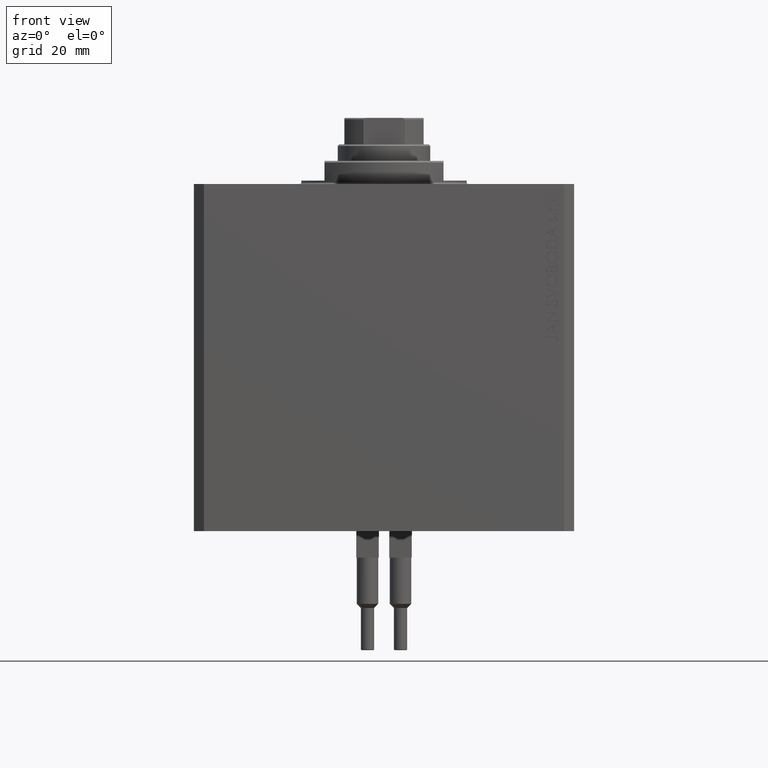
[diagram: clean part render]
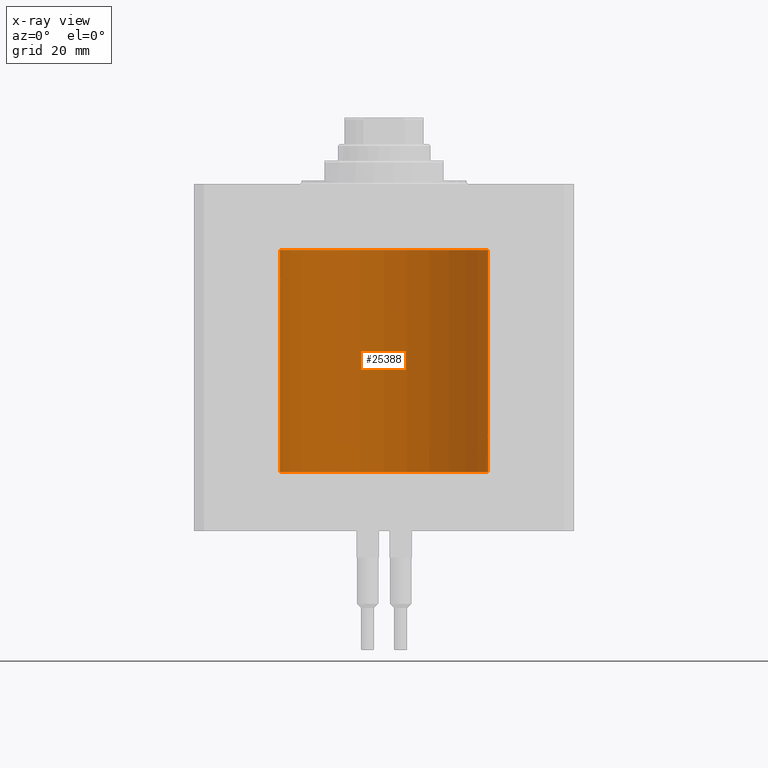
[diagram: x-ray — body ghosted, one internal face saturated and labeled with its STEP entity id]
A machine part, front view, then the same camera in x-ray: the body is ghosted and one INTERNAL B-rep face — a face not visible from any outside direction — is saturated and labeled: STEP entity #25388.
In plain terms, the highlighted cylindrical surface (partial cylindrical patch) has radius 31.5 mm, axis along (0, 0, 1).
Its self-contained STEP definition (entity closure, byte-faithful):
#2 = CARTESIAN_POINT ( 'NONE',  ( -31.46402885784291215, 1.507852291435628045, -30.32053570646255736 ) ) ;
#245 = CARTESIAN_POINT ( 'NONE',  ( -31.43644976744935349, 1.999906504661145057, -28.73831721771797731 ) ) ;
#478 = CARTESIAN_POINT ( 'NONE',  ( -31.45162599326494757, 1.747914105633341375, -27.99368423768024527 ) ) ;
#716 = CARTESIAN_POINT ( 'NONE',  ( -31.50000000000000711, 0.1321804137546035152, -27.00000000000000711 ) ) ;
#1134 = DIRECTION ( 'NONE',  ( -0.000000000000000000, -0.000000000000000000, 1.000000000000000000 ) ) ;
#2363 = ORIENTED_EDGE ( 'NONE', *, *, #32905, .T. ) ;
#2715 = DIRECTION ( 'NONE',  ( -0.000000000000000000, -0.000000000000000000, 1.000000000000000000 ) ) ;
#2716 = DIRECTION ( 'NONE',  ( 0.000000000000000000, 0.000000000000000000, 1.000000000000000000 ) ) ;
#2727 = CARTESIAN_POINT ( 'NONE',  ( 31.50000000000000711, 0.1322106156816646727, -78.00000000000000000 ) ) ;
#2754 = CARTESIAN_POINT ( 'NONE',  ( 31.49364883223205425, 0.6440257487116619606, -74.10199450781240671 ) ) ;
#4133 = CARTESIAN_POINT ( 'NONE',  ( -31.43644085734510796, 2.000046555665927261, -29.12976806868835666 ) ) ;
#4289 = ORIENTED_EDGE ( 'NONE', *, *, #4822, .T. ) ;
#4599 = CARTESIAN_POINT ( 'NONE',  ( -31.44046365243112362, 1.935949445030092253, -29.51885062223535172 ) ) ;
#4822 = EDGE_CURVE ( 'NONE', #23360, #38458, #18672, .T. ) ;
#5105 = VECTOR ( 'NONE', #1134, 1000.000000000000000 ) ;
#5382 = CARTESIAN_POINT ( 'NONE',  ( 0.000000000000000000, 0.000000000000000000, -20.00000000000000355 ) ) ;
#5486 = EDGE_LOOP ( 'NONE', ( #41092, #40857, #47187, #14398, #2363, #4289, #41784, #16464, #26372 ) ) ;
#5832 = CARTESIAN_POINT ( 'NONE',  ( -31.50000000000000000, 3.857637417314162689E-15, -20.00000000000000355 ) ) ;
#6128 = CARTESIAN_POINT ( 'NONE',  ( 31.48424227690098931, 1.002158581476553012, -77.73573328606775590 ) ) ;
#6329 = CARTESIAN_POINT ( 'NONE',  ( -31.50000000000000000, 1.397936845058764387E-14, -27.00000000000000000 ) ) ;
#6403 = CARTESIAN_POINT ( 'NONE',  ( 31.47656038302703507, 1.219789706799893736, -74.40969215575444196 ) ) ;
#8006 = CARTESIAN_POINT ( 'NONE',  ( -31.43727648790974172, 1.987033456253953112, -29.26230567213424294 ) ) ;
#8240 = EDGE_CURVE ( 'NONE', #11228, #16663, #27371, .T. ) ;
#9772 = CARTESIAN_POINT ( 'NONE',  ( 31.50000000000000000, 2.115822464172388752E-15, -78.00000000000000000 ) ) ;
#10516 = CARTESIAN_POINT ( 'NONE',  ( 31.47243113015943550, 1.320912165297396079, -74.49247977760566641 ) ) ;
#10937 = CARTESIAN_POINT ( 'NONE',  ( -31.44868630248347330, 1.797956860106296073, -29.88573445525094385 ) ) ;
#11228 = VERTEX_POINT ( 'NONE', #33342 ) ;
#11323 = VECTOR ( 'NONE', #46905, 1000.000000000000000 ) ;
#11419 = CARTESIAN_POINT ( 'NONE',  ( -31.47242045906136099, 1.321166510329244925, -30.50729961746650076 ) ) ;
#11652 = CARTESIAN_POINT ( 'NONE',  ( -31.50000000000000000, 3.857637408943224358E-15, -30.99999999999999645 ) ) ;
#11833 = CARTESIAN_POINT ( 'NONE',  ( 31.43644381923627051, 2.000000000000389910, -76.00000000000000000 ) ) ;
#11895 = CARTESIAN_POINT ( 'NONE',  ( -31.50000000000000000, 0.1305468079557571826, -31.00000000000000000 ) ) ;
#11991 = VERTEX_POINT ( 'NONE', #11833 ) ;
#12904 = CARTESIAN_POINT ( 'NONE',  ( -31.50000000000000000, 3.857637417314162689E-15, -87.09999999999999432 ) ) ;
#13417 = CIRCLE ( 'NONE', #14184, 31.50000000000000000 ) ;
#13890 = CARTESIAN_POINT ( 'NONE',  ( 31.47656968928225751, 1.219587704424721197, -77.59050234014505065 ) ) ;
#13923 = CARTESIAN_POINT ( 'NONE',  ( 31.44869941755756315, 1.797728078038228094, -75.11380515043099138 ) ) ;
#14168 = CARTESIAN_POINT ( 'NONE',  ( 31.43728213781475489, 1.986944500966173477, -75.73703800172732770 ) ) ;
#14184 = AXIS2_PLACEMENT_3D ( 'NONE', #5382, #19952, #24088 ) ;
#14398 = ORIENTED_EDGE ( 'NONE', *, *, #44750, .T. ) ;
#14402 = CARTESIAN_POINT ( 'NONE',  ( 31.49916210907646175, 0.2630769646869197675, -74.01307666483570813 ) ) ;
#14591 = CARTESIAN_POINT ( 'NONE',  ( -31.49916171907896256, 0.2631371420809984762, -30.98691729972353315 ) ) ;
#14830 = CARTESIAN_POINT ( 'NONE',  ( -31.44279716593210949, 1.898163692853223061, -29.64354408641193928 ) ) ;
#15072 = CARTESIAN_POINT ( 'NONE',  ( -31.48773989768472603, 0.8870801819049330961, -27.20270307449468916 ) ) ;
#15535 = CARTESIAN_POINT ( 'NONE',  ( -31.49600294595510164, 0.5178263803265128473, -27.06380656104273896 ) ) ;
#16464 = ORIENTED_EDGE ( 'NONE', *, *, #45219, .F. ) ;
#16663 = VERTEX_POINT ( 'NONE', #43585 ) ;
#16812 = CARTESIAN_POINT ( 'NONE',  ( 31.49362851683618914, 0.6450141649083153128, -77.89767007611372662 ) ) ;
#17339 = CARTESIAN_POINT ( 'NONE',  ( 31.43644381923627051, 2.000000000000389466, -75.86954368634472701 ) ) ;
#17537 = DIRECTION ( 'NONE',  ( 1.000000000000000000, 0.000000000000000000, 0.000000000000000000 ) ) ;
#18672 = LINE ( 'NONE', #48061, #39690 ) ;
#18707 = CARTESIAN_POINT ( 'NONE',  ( -31.49363138352033431, 0.6448700584747274478, -27.10228292539639128 ) ) ;
#19179 = CARTESIAN_POINT ( 'NONE',  ( -31.48775605676681266, 0.8865158617371098337, -30.79757944476694576 ) ) ;
#19952 = DIRECTION ( 'NONE',  ( 0.000000000000000000, 0.000000000000000000, 1.000000000000000000 ) ) ;
#20359 = AXIS2_PLACEMENT_3D ( 'NONE', #42793, #2716, #17537 ) ;
#20869 = CARTESIAN_POINT ( 'NONE',  ( 31.50000000000000000, -8.369814204394935255E-24, -74.00000000000000000 ) ) ;
#20942 = CARTESIAN_POINT ( 'NONE',  ( 31.43644381923627051, 2.000000000000390354, -76.26103188650854747 ) ) ;
#21926 = CARTESIAN_POINT ( 'NONE',  ( 31.43644381923627051, 2.000000000000389910, -76.00000000000000000 ) ) ;
#22124 = CARTESIAN_POINT ( 'NONE',  ( 0.000000000000000000, 0.000000000000000000, -87.09999999999999432 ) ) ;
#22166 = EDGE_CURVE ( 'NONE', #38458, #46393, #13417, .T. ) ;
#22588 = CARTESIAN_POINT ( 'NONE',  ( -31.43990583976198039, 1.947383405442052906, -28.47504952007440693 ) ) ;
#23360 = VERTEX_POINT ( 'NONE', #20869 ) ;
#23728 = LINE ( 'NONE', #34420, #5105 ) ;
#23843 = LINE ( 'NONE', #12904, #11323 ) ;
#24088 = DIRECTION ( 'NONE',  ( 1.000000000000000000, 0.000000000000000000, 0.000000000000000000 ) ) ;
#25070 = FACE_OUTER_BOUND ( 'NONE', #5486, .T. ) ;
#25388 = ADVANCED_FACE ( 'NONE', ( #25070 ), #28963, .F. ) ;
#25759 = CARTESIAN_POINT ( 'NONE',  ( -31.49364602877929897, 0.6441674297270015837, -30.89795957697708317 ) ) ;
#25896 = VERTEX_POINT ( 'NONE', #31769 ) ;
#26237 = CARTESIAN_POINT ( 'NONE',  ( -31.49597709302052451, 0.5194777340345942962, -30.93577488239865758 ) ) ;
#26372 = ORIENTED_EDGE ( 'NONE', *, *, #34040, .T. ) ;
#26474 = CARTESIAN_POINT ( 'NONE',  ( -31.47237164446477209, 1.322250186170389252, -27.49378908604443694 ) ) ;
#26778 = VERTEX_POINT ( 'NONE', #43905 ) ;
#26939 = EDGE_CURVE ( 'NONE', #11228, #26778, #23728, .T. ) ;
#27192 = EDGE_CURVE ( 'NONE', #16663, #25896, #23843, .T. ) ;
#27207 = LINE ( 'NONE', #31351, #42018 ) ;
#27371 = CIRCLE ( 'NONE', #20359, 31.50000000000000000 ) ;
#27754 = CARTESIAN_POINT ( 'NONE',  ( 31.45161214644909364, 1.748160858796787398, -77.00590244996604383 ) ) ;
#27998 = CARTESIAN_POINT ( 'NONE',  ( 31.49916827061299074, 0.2622045237009018592, -77.98701932221887034 ) ) ;
#28757 = CARTESIAN_POINT ( 'NONE',  ( 31.45226167581968113, 1.735077252816683346, -74.99676481699547992 ) ) ;
#28963 = CYLINDRICAL_SURFACE ( 'NONE', #39111, 31.50000000000000000 ) ;
#29000 = CARTESIAN_POINT ( 'NONE',  ( 31.48420706794360058, 1.003217712170301423, -74.26491493284291323 ) ) ;
#29213 = B_SPLINE_CURVE_WITH_KNOTS ( 'NONE', 3,
 ( #21926, #17339, #14168, #39686, #36270, #13923, #28757, #43546, #46715, #10516, #6403, #29000, #44018, #2754, #32879, #14402, #43790, #29232 ),
 .UNSPECIFIED., .F., .F.,
 ( 4, 2, 2, 2, 2, 2, 2, 2, 4 ),
 ( 0.003127956870251400769, 0.003518772842989208258, 0.003909588815727015748, 0.004300404788464823672, 0.004691220761202631595, 0.005082036733940438651, 0.005472852706678246575, 0.005863668679416053631, 0.006254484652153861554 ),
 .UNSPECIFIED. ) ;
#29232 = CARTESIAN_POINT ( 'NONE',  ( 31.50000000000000000, -8.369814204394935255E-24, -74.00000000000000000 ) ) ;
#29417 = CARTESIAN_POINT ( 'NONE',  ( -31.48424881603013148, 1.001951351791703804, -27.26414944111796856 ) ) ;
#29902 = CARTESIAN_POINT ( 'NONE',  ( -31.45224836082999431, 1.735318303535943185, -30.00282216311122951 ) ) ;
#30371 = CARTESIAN_POINT ( 'NONE',  ( -31.50000000000000000, 1.397936845058764387E-14, -27.00000000000000000 ) ) ;
#31351 = CARTESIAN_POINT ( 'NONE',  ( -31.50000000000000000, 3.857637417314162689E-15, -87.09999999999999432 ) ) ;
#31769 = CARTESIAN_POINT ( 'NONE',  ( -31.50000000000000000, 3.857637408943224358E-15, -30.99999999999999645 ) ) ;
#32376 = CARTESIAN_POINT ( 'NONE',  ( 31.49600115550921231, 0.5179422407981758569, -77.93616446468720937 ) ) ;
#32879 = CARTESIAN_POINT ( 'NONE',  ( 31.49597888575898708, 0.5193621964009169645, -74.06419610029345790 ) ) ;
#32905 = EDGE_CURVE ( 'NONE', #11991, #23360, #29213, .T. ) ;
#33290 = CARTESIAN_POINT ( 'NONE',  ( -31.45990328919314649, 1.590516142808641842, -30.21952462249807425 ) ) ;
#33342 = CARTESIAN_POINT ( 'NONE',  ( 31.50000000000000000, 0.000000000000000000, -87.09999999999999432 ) ) ;
#33499 = DIRECTION ( 'NONE',  ( -0.000000000000000000, -0.000000000000000000, 1.000000000000000000 ) ) ;
#34040 = EDGE_CURVE ( 'NONE', #36293, #25896, #47138, .T. ) ;
#34420 = CARTESIAN_POINT ( 'NONE',  ( 31.50000000000000000, 0.000000000000000000, -87.09999999999999432 ) ) ;
#34846 = B_SPLINE_CURVE_WITH_KNOTS ( 'NONE', 3,
 ( #9772, #2727, #27998, #32376, #16812, #39413, #6128, #13890, #46196, #46680, #27754, #39172, #20942, #35764 ),
 .UNSPECIFIED., .F., .F.,
 ( 4, 2, 2, 2, 2, 2, 4 ),
 ( 2.056106459202125122E-18, 0.0003909946087814195124, 0.0007819892175628369649, 0.001172983826344254146, 0.001563978435125671761, 0.002345967652688536048, 0.003127956870251400769 ),
 .UNSPECIFIED. ) ;
#35764 = CARTESIAN_POINT ( 'NONE',  ( 31.43644381923627051, 2.000000000000389910, -76.00000000000000000 ) ) ;
#36000 = DIRECTION ( 'NONE',  ( 1.000000000000000000, 0.000000000000000000, 0.000000000000000000 ) ) ;
#36270 = CARTESIAN_POINT ( 'NONE',  ( 31.44280827872263018, 1.897980201673372669, -75.35592026268044208 ) ) ;
#36293 = VERTEX_POINT ( 'NONE', #6329 ) ;
#36931 = CARTESIAN_POINT ( 'NONE',  ( -31.49916865039979186, 0.2621451228717642246, -27.01297480444316079 ) ) ;
#37639 = CARTESIAN_POINT ( 'NONE',  ( -31.47655123270016375, 1.220027114947935809, -30.59012812369856960 ) ) ;
#37876 = CARTESIAN_POINT ( 'NONE',  ( -31.47657892357849718, 1.219347894895174589, -27.40931637798618326 ) ) ;
#38458 = VERTEX_POINT ( 'NONE', #45692 ) ;
#39111 = AXIS2_PLACEMENT_3D ( 'NONE', #22124, #2715, #36000 ) ;
#39172 = CARTESIAN_POINT ( 'NONE',  ( 31.43989559156923264, 1.947546710638703438, -76.52437385228235200 ) ) ;
#39413 = CARTESIAN_POINT ( 'NONE',  ( 31.48773468680478160, 0.8872681233992109062, -77.79720623967027393 ) ) ;
#39686 = CARTESIAN_POINT ( 'NONE',  ( 31.44047330683569186, 1.935793094480600107, -75.48057478130489528 ) ) ;
#39690 = VECTOR ( 'NONE', #33499, 1000.000000000000000 ) ;
#40857 = ORIENTED_EDGE ( 'NONE', *, *, #8240, .F. ) ;
#41092 = ORIENTED_EDGE ( 'NONE', *, *, #27192, .F. ) ;
#41542 = DIRECTION ( 'NONE',  ( -0.000000000000000000, -0.000000000000000000, 1.000000000000000000 ) ) ;
#41784 = ORIENTED_EDGE ( 'NONE', *, *, #22166, .T. ) ;
#42018 = VECTOR ( 'NONE', #41542, 1000.000000000000000 ) ;
#42793 = CARTESIAN_POINT ( 'NONE',  ( 0.000000000000000000, 0.000000000000000000, -87.09999999999999432 ) ) ;
#43546 = CARTESIAN_POINT ( 'NONE',  ( 31.45991621267056004, 1.590260824275570029, -74.78014573967448086 ) ) ;
#43585 = CARTESIAN_POINT ( 'NONE',  ( -31.50000000000000000, 3.857637417314162689E-15, -87.09999999999999432 ) ) ;
#43790 = CARTESIAN_POINT ( 'NONE',  ( 31.50000000000000711, 0.1305169792915977789, -73.99999999999998579 ) ) ;
#43905 = CARTESIAN_POINT ( 'NONE',  ( 31.50000000000000000, 2.115822464172388752E-15, -78.00000000000000000 ) ) ;
#44018 = CARTESIAN_POINT ( 'NONE',  ( 31.48776132734998967, 0.8863252928784766116, -74.20232887084928564 ) ) ;
#44750 = EDGE_CURVE ( 'NONE', #26778, #11991, #34846, .T. ) ;
#45164 = CARTESIAN_POINT ( 'NONE',  ( -31.45993541206224720, 1.598922699014384996, -27.77056366933358689 ) ) ;
#45219 = EDGE_CURVE ( 'NONE', #36293, #46393, #27207, .T. ) ;
#45692 = CARTESIAN_POINT ( 'NONE',  ( 31.50000000000000000, 0.000000000000000000, -20.00000000000000355 ) ) ;
#46196 = CARTESIAN_POINT ( 'NONE',  ( 31.47236118406704364, 1.322499398534437987, -77.50599456990816805 ) ) ;
#46393 = VERTEX_POINT ( 'NONE', #5832 ) ;
#46680 = CARTESIAN_POINT ( 'NONE',  ( 31.45992223434330981, 1.599182806012581226, -77.22911007148194074 ) ) ;
#46715 = CARTESIAN_POINT ( 'NONE',  ( 31.46404119587053927, 1.507594711990248637, -74.67917285243763104 ) ) ;
#46905 = DIRECTION ( 'NONE',  ( -0.000000000000000000, -0.000000000000000000, 1.000000000000000000 ) ) ;
#47138 = B_SPLINE_CURVE_WITH_KNOTS ( 'NONE', 3,
 ( #30371, #716, #36931, #15535, #18707, #15072, #29417, #37876, #26474, #45164, #478, #22588, #245, #4133, #8006, #4599, #14830, #10937, #29902, #33290, #2, #11419, #37639, #47855, #19179, #25759, #26237, #14591, #11895, #11652 ),
 .UNSPECIFIED., .F., .F.,
 ( 4, 2, 2, 2, 2, 2, 2, 2, 2, 2, 2, 2, 2, 2, 4 ),
 ( 2.625213444697534148E-19, 0.0003909052907595647391, 0.0007818105815191293698, 0.001172715872278693892, 0.001563621163038258956, 0.002345431744557394723, 0.003127242326076530923, 0.003518147616836098807, 0.003909052907595665823, 0.004299958198355233706, 0.004690863489114801589, 0.005081768779874370340, 0.005472674070633938223, 0.005863579361393506106, 0.006254484652153074857 ),
 .UNSPECIFIED. ) ;
#47187 = ORIENTED_EDGE ( 'NONE', *, *, #26939, .T. ) ;
#47855 = CARTESIAN_POINT ( 'NONE',  ( -31.48420048909751756, 1.003425746290474763, -30.73496696875380607 ) ) ;
#48061 = CARTESIAN_POINT ( 'NONE',  ( 31.50000000000000000, 0.000000000000000000, -87.09999999999999432 ) ) ;